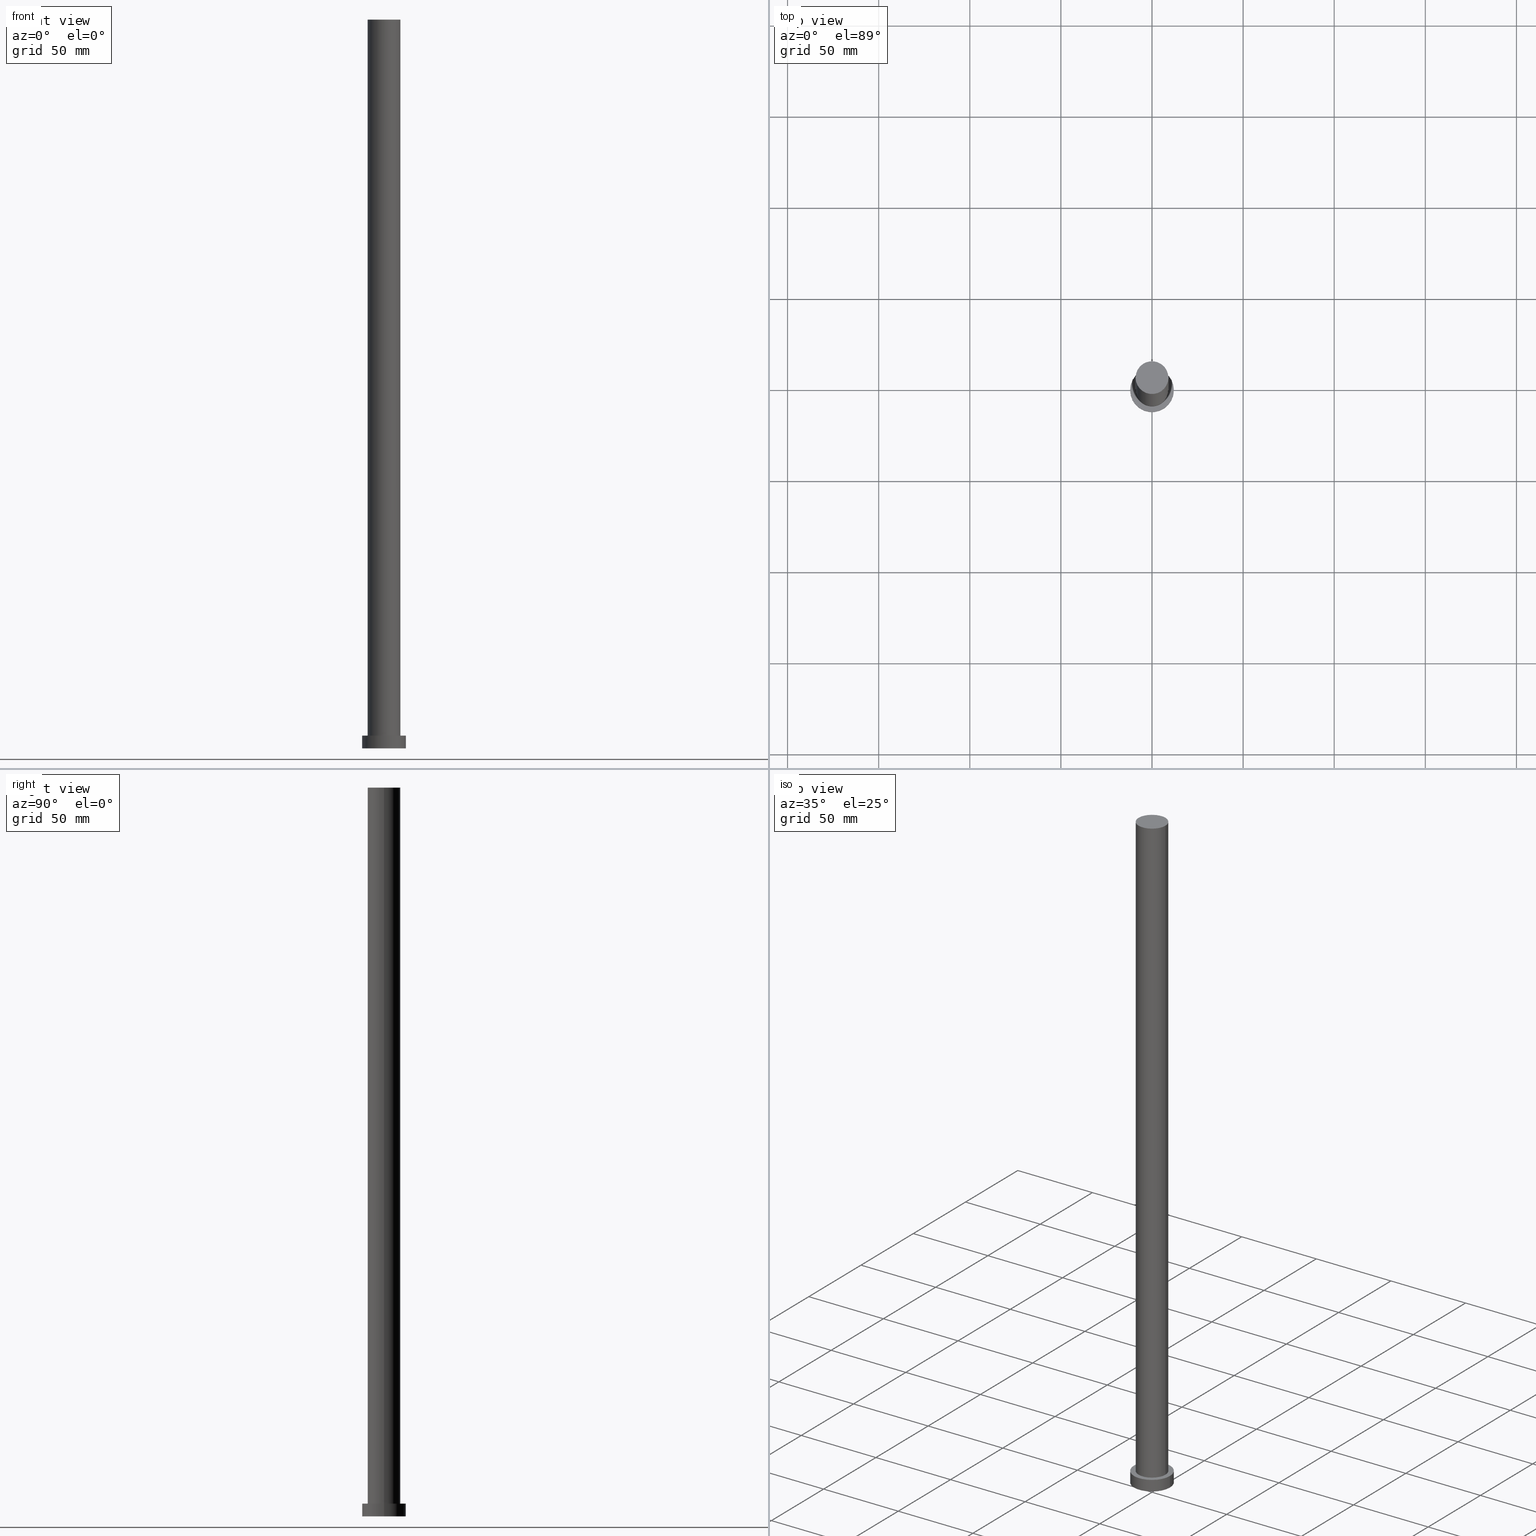
[diagram: canonical four-view strip — front | top / right | iso, engineering-drawing reading convention]
A machine part, canonical four-view strip (front | top / right | iso — engineering-drawing reading convention). The complete STEP part file that produces these views, byte-faithful:
ISO-10303-21;
HEADER;
FILE_DESCRIPTION (( 'STEP AP203' ),
    '1' );
FILE_NAME ('4e25.STEP',
    '2023-02-12T10:37:21',
    ( '' ),
    ( '' ),
    'SwSTEP 2.0',
    'SolidWorks 2019',
    '' );
FILE_SCHEMA (( 'CONFIG_CONTROL_DESIGN' ));
ENDSEC;

DATA;
#1 = ADVANCED_BREP_SHAPE_REPRESENTATION ( '4e25', ( #253, #132 ), #201 ) ;
#2 = DIRECTION ( 'NONE',  ( 1.000000000000000000, 0.000000000000000000, 0.000000000000000000 ) ) ;
#3 = COORDINATED_UNIVERSAL_TIME_OFFSET ( 1, 0, .AHEAD. ) ;
#4 = EDGE_CURVE ( 'NONE', #170, #69, #159, .T. ) ;
#5 = LINE ( 'NONE', #236, #163 ) ;
#6 = APPROVAL ( #237, 'NEUR�EN�' ) ;
#7 = CIRCLE ( 'NONE', #183, 12.00000000000000178 ) ;
#8 = DATE_AND_TIME ( #184, #244 ) ;
#9 = PERSON_AND_ORGANIZATION ( #234, #99 ) ;
#10 = CALENDAR_DATE ( 2023, 12, 2 ) ;
#11 = DIRECTION ( 'NONE',  ( 0.000000000000000000, 0.000000000000000000, 1.000000000000000000 ) ) ;
#12 = CARTESIAN_POINT ( 'NONE',  ( 0.000000000000000000, 0.000000000000000000, 7.000000000000000000 ) ) ;
#13 = CARTESIAN_POINT ( 'NONE',  ( 0.000000000000000000, 0.000000000000000000, 0.000000000000000000 ) ) ;
#14 = CIRCLE ( 'NONE', #113, 9.000000000000001776 ) ;
#15 = ORIENTED_EDGE ( 'NONE', *, *, #197, .T. ) ;
#16 = DIRECTION ( 'NONE',  ( -1.000000000000000000, 0.000000000000000000, 0.000000000000000000 ) ) ;
#17 = DIRECTION ( 'NONE',  ( -1.000000000000000000, 0.000000000000000000, 0.000000000000000000 ) ) ;
#18 = CARTESIAN_POINT ( 'NONE',  ( -12.00000000000000178, 0.000000000000000000, 7.000000000000000000 ) ) ;
#19 = FACE_OUTER_BOUND ( 'NONE', #111, .T. ) ;
#20 = SHAPE_DEFINITION_REPRESENTATION ( #175, #1 ) ;
#21 = ADVANCED_FACE ( 'NONE', ( #116 ), #149, .T. ) ;
#22 = DATE_AND_TIME ( #76, #167 ) ;
#23 = PRODUCT_RELATED_PRODUCT_CATEGORY ( 'detail', '', ( #95 ) ) ;
#24 = CARTESIAN_POINT ( 'NONE',  ( 0.000000000000000000, 0.000000000000000000, 0.000000000000000000 ) ) ;
#25 = AXIS2_PLACEMENT_3D ( 'NONE', #218, #97, #38 ) ;
#26 = LOCAL_TIME ( 11, 37, 21.00000000000000000, #240 ) ;
#27 = AXIS2_PLACEMENT_3D ( 'NONE', #118, #233, #157 ) ;
#28 = CARTESIAN_POINT ( 'NONE',  ( 0.000000000000000000, 0.000000000000000000, 400.0000000000000000 ) ) ;
#29 = PERSON_AND_ORGANIZATION ( #234, #99 ) ;
#30 = EDGE_CURVE ( 'NONE', #205, #223, #145, .T. ) ;
#31 = ORIENTED_EDGE ( 'NONE', *, *, #204, .T. ) ;
#32 = CC_DESIGN_PERSON_AND_ORGANIZATION_ASSIGNMENT ( #150, #50, ( #53 ) ) ;
#33 = PERSON_AND_ORGANIZATION_ROLE ( 'creator' ) ;
#34 = ORIENTED_EDGE ( 'NONE', *, *, #110, .T. ) ;
#35 = ORIENTED_EDGE ( 'NONE', *, *, #195, .F. ) ;
#36 = SECURITY_CLASSIFICATION ( '', '', #148 ) ;
#37 = CARTESIAN_POINT ( 'NONE',  ( 0.000000000000000000, 0.000000000000000000, 7.000000000000000000 ) ) ;
#38 = DIRECTION ( 'NONE',  ( 1.000000000000000000, 0.000000000000000000, 0.000000000000000000 ) ) ;
#39 = LINE ( 'NONE', #215, #51 ) ;
#40 = CARTESIAN_POINT ( 'NONE',  ( 0.000000000000000000, 0.000000000000000000, 7.000000000000000000 ) ) ;
#41 = CC_DESIGN_PERSON_AND_ORGANIZATION_ASSIGNMENT ( #9, #101, ( #95 ) ) ;
#42 = DIRECTION ( 'NONE',  ( 1.000000000000000000, 0.000000000000000000, 0.000000000000000000 ) ) ;
#43 = AXIS2_PLACEMENT_3D ( 'NONE', #37, #94, #178 ) ;
#44 = PERSON_AND_ORGANIZATION ( #234, #99 ) ;
#45 = CARTESIAN_POINT ( 'NONE',  ( 9.000000000000001776, 1.102182119232617911E-15, 7.000000000000000000 ) ) ;
#46 = DIRECTION ( 'NONE',  ( -0.000000000000000000, -0.000000000000000000, -1.000000000000000000 ) ) ;
#47 = APPROVAL ( #120, 'NEUR�EN�' ) ;
#48 = APPROVAL_PERSON_ORGANIZATION ( #107, #6, #134 ) ;
#49 = EDGE_LOOP ( 'NONE', ( #224, #91 ) ) ;
#50 = PERSON_AND_ORGANIZATION_ROLE ( 'design_supplier' ) ;
#51 = VECTOR ( 'NONE', #255, 1000.000000000000000 ) ;
#52 = EDGE_LOOP ( 'NONE', ( #251, #245, #88, #109 ) ) ;
#53 = PRODUCT_DEFINITION_FORMATION_WITH_SPECIFIED_SOURCE ( 'LIBOVOLN�', '', #95, .NOT_KNOWN. ) ;
#54 = DATE_TIME_ROLE ( 'classification_date' ) ;
#55 = FACE_OUTER_BOUND ( 'NONE', #126, .T. ) ;
#56 = CLOSED_SHELL ( 'NONE', ( #228, #21, #141, #90, #62, #165, #83 ) ) ;
#57 = PERSON_AND_ORGANIZATION_ROLE ( 'classification_officer' ) ;
#58 = CARTESIAN_POINT ( 'NONE',  ( 0.000000000000000000, 0.000000000000000000, 400.0000000000000000 ) ) ;
#59 = PLANE ( 'NONE',  #160 ) ;
#60 = DESIGN_CONTEXT ( 'detailed design', #87, 'design' ) ;
#61 = CARTESIAN_POINT ( 'NONE',  ( 12.00000000000000178, 1.469576158976824144E-15, 7.000000000000000000 ) ) ;
#62 = ADVANCED_FACE ( 'NONE', ( #192 ), #92, .F. ) ;
#63 = APPROVAL_ROLE ( '' ) ;
#64 = APPROVAL_DATE_TIME ( #8, #185 ) ;
#65 = EDGE_CURVE ( 'NONE', #205, #170, #5, .T. ) ;
#66 = CC_DESIGN_PERSON_AND_ORGANIZATION_ASSIGNMENT ( #44, #122, ( #158 ) ) ;
#67 = APPLICATION_CONTEXT ( 'configuration controlled 3d designs of mechanical parts and assemblies' ) ;
#68 = LOCAL_TIME ( 11, 37, 21.00000000000000000, #85 ) ;
#69 = VERTEX_POINT ( 'NONE', #194 ) ;
#70 = CARTESIAN_POINT ( 'NONE',  ( -9.000000000000001776, 0.000000000000000000, 400.0000000000000000 ) ) ;
#71 = ORIENTED_EDGE ( 'NONE', *, *, #102, .T. ) ;
#72 = DIRECTION ( 'NONE',  ( 0.000000000000000000, 0.000000000000000000, 1.000000000000000000 ) ) ;
#73 = EDGE_CURVE ( 'NONE', #209, #246, #75, .T. ) ;
#74 = DIRECTION ( 'NONE',  ( -0.000000000000000000, -0.000000000000000000, -1.000000000000000000 ) ) ;
#75 = LINE ( 'NONE', #61, #103 ) ;
#76 = CALENDAR_DATE ( 2023, 12, 2 ) ;
#77 = DIRECTION ( 'NONE',  ( 0.000000000000000000, 0.000000000000000000, 1.000000000000000000 ) ) ;
#78 = CC_DESIGN_APPROVAL ( #47, ( #53 ) ) ;
#79 = PERSON_AND_ORGANIZATION ( #234, #99 ) ;
#80 = AXIS2_PLACEMENT_3D ( 'NONE', #144, #46, #220 ) ;
#81 = CC_DESIGN_APPROVAL ( #185, ( #158 ) ) ;
#82 = EDGE_CURVE ( 'NONE', #108, #247, #39, .T. ) ;
#83 = ADVANCED_FACE ( 'NONE', ( #55 ), #119, .T. ) ;
#84 = ORIENTED_EDGE ( 'NONE', *, *, #204, .F. ) ;
#85 = COORDINATED_UNIVERSAL_TIME_OFFSET ( 1, 0, .AHEAD. ) ;
#86 = ORIENTED_EDGE ( 'NONE', *, *, #197, .F. ) ;
#87 = APPLICATION_CONTEXT ( 'configuration controlled 3d designs of mechanical parts and assemblies' ) ;
#88 = ORIENTED_EDGE ( 'NONE', *, *, #248, .T. ) ;
#89 = CC_DESIGN_APPROVAL ( #6, ( #36 ) ) ;
#90 = ADVANCED_FACE ( 'NONE', ( #235, #130 ), #59, .T. ) ;
#91 = ORIENTED_EDGE ( 'NONE', *, *, #4, .F. ) ;
#92 = PLANE ( 'NONE',  #166 ) ;
#93 = CARTESIAN_POINT ( 'NONE',  ( -9.000000000000001776, 0.000000000000000000, 400.0000000000000000 ) ) ;
#94 = DIRECTION ( 'NONE',  ( 0.000000000000000000, 0.000000000000000000, 1.000000000000000000 ) ) ;
#95 = PRODUCT ( '4e25', '4e25', '', ( #142 ) ) ;
#96 = COORDINATED_UNIVERSAL_TIME_OFFSET ( 1, 0, .AHEAD. ) ;
#97 = DIRECTION ( 'NONE',  ( 0.000000000000000000, 0.000000000000000000, 1.000000000000000000 ) ) ;
#98 = CALENDAR_DATE ( 2023, 12, 2 ) ;
#99 = ORGANIZATION ( 'NEUR�EN�', 'NEUR�EN�', '' ) ;
#100 = DIRECTION ( 'NONE',  ( 1.000000000000000000, 0.000000000000000000, 0.000000000000000000 ) ) ;
#101 = PERSON_AND_ORGANIZATION_ROLE ( 'design_owner' ) ;
#102 = EDGE_CURVE ( 'NONE', #209, #108, #139, .T. ) ;
#103 = VECTOR ( 'NONE', #254, 1000.000000000000000 ) ;
#104 = AXIS2_PLACEMENT_3D ( 'NONE', #114, #191, #16 ) ;
#105 = FACE_OUTER_BOUND ( 'NONE', #208, .T. ) ;
#106 = ORIENTED_EDGE ( 'NONE', *, *, #248, .F. ) ;
#107 = PERSON_AND_ORGANIZATION ( #234, #99 ) ;
#108 = VERTEX_POINT ( 'NONE', #18 ) ;
#109 = ORIENTED_EDGE ( 'NONE', *, *, #82, .F. ) ;
#110 = EDGE_CURVE ( 'NONE', #108, #209, #193, .T. ) ;
#111 = EDGE_LOOP ( 'NONE', ( #210, #128, #147, #15 ) ) ;
#112 = APPROVAL_DATE_TIME ( #22, #47 ) ;
#113 = AXIS2_PLACEMENT_3D ( 'NONE', #230, #156, #238 ) ;
#114 = CARTESIAN_POINT ( 'NONE',  ( 0.000000000000000000, 0.000000000000000000, 7.000000000000000000 ) ) ;
#115 = FACE_OUTER_BOUND ( 'NONE', #173, .T. ) ;
#116 = FACE_OUTER_BOUND ( 'NONE', #52, .T. ) ;
#117 = CARTESIAN_POINT ( 'NONE',  ( 0.000000000000000000, 0.000000000000000000, 7.000000000000000000 ) ) ;
#118 = CARTESIAN_POINT ( 'NONE',  ( 0.000000000000000000, 0.000000000000000000, 0.000000000000000000 ) ) ;
#119 = PLANE ( 'NONE',  #188 ) ;
#120 = APPROVAL_STATUS ( 'not_yet_approved' ) ;
#121 = CC_DESIGN_DATE_AND_TIME_ASSIGNMENT ( #177, #54, ( #36 ) ) ;
#122 = PERSON_AND_ORGANIZATION_ROLE ( 'creator' ) ;
#123 = CC_DESIGN_PERSON_AND_ORGANIZATION_ASSIGNMENT ( #29, #33, ( #53 ) ) ;
#124 = PERSON_AND_ORGANIZATION ( #234, #99 ) ;
#125 = ORIENTED_EDGE ( 'NONE', *, *, #4, .T. ) ;
#126 = EDGE_LOOP ( 'NONE', ( #249, #127 ) ) ;
#127 = ORIENTED_EDGE ( 'NONE', *, *, #30, .T. ) ;
#128 = ORIENTED_EDGE ( 'NONE', *, *, #110, .F. ) ;
#129 = AXIS2_PLACEMENT_3D ( 'NONE', #138, #174, #17 ) ;
#130 = FACE_OUTER_BOUND ( 'NONE', #187, .T. ) ;
#131 = DATE_AND_TIME ( #98, #219 ) ;
#132 = AXIS2_PLACEMENT_3D ( 'NONE', #143, #202, #100 ) ;
#133 = DIRECTION ( 'NONE',  ( 0.000000000000000000, 0.000000000000000000, 1.000000000000000000 ) ) ;
#134 = APPROVAL_ROLE ( '' ) ;
#135 = CARTESIAN_POINT ( 'NONE',  ( 0.000000000000000000, 0.000000000000000000, 400.0000000000000000 ) ) ;
#136 = DIRECTION ( 'NONE',  ( 1.000000000000000000, 0.000000000000000000, -0.000000000000000000 ) ) ;
#137 = CARTESIAN_POINT ( 'NONE',  ( 12.00000000000000178, 1.469576158976824144E-15, 7.000000000000000000 ) ) ;
#138 = CARTESIAN_POINT ( 'NONE',  ( 0.000000000000000000, 0.000000000000000000, 7.000000000000000000 ) ) ;
#139 = CIRCLE ( 'NONE', #211, 12.00000000000000178 ) ;
#140 = AXIS2_PLACEMENT_3D ( 'NONE', #28, #77, #42 ) ;
#141 = ADVANCED_FACE ( 'NONE', ( #19 ), #181, .T. ) ;
#142 = MECHANICAL_CONTEXT ( 'NONE', #67, 'mechanical' ) ;
#143 = CARTESIAN_POINT ( 'NONE',  ( 0.000000000000000000, 0.000000000000000000, 0.000000000000000000 ) ) ;
#144 = CARTESIAN_POINT ( 'NONE',  ( 0.000000000000000000, 0.000000000000000000, 400.0000000000000000 ) ) ;
#145 = CIRCLE ( 'NONE', #25, 9.000000000000001776 ) ;
#146 = APPROVAL_PERSON_ORGANIZATION ( #79, #185, #63 ) ;
#147 = ORIENTED_EDGE ( 'NONE', *, *, #82, .T. ) ;
#148 = SECURITY_CLASSIFICATION_LEVEL ( 'unclassified' ) ;
#149 = CYLINDRICAL_SURFACE ( 'NONE', #129, 12.00000000000000178 ) ;
#150 = PERSON_AND_ORGANIZATION ( #234, #99 ) ;
#151 =( LENGTH_UNIT ( ) NAMED_UNIT ( * ) SI_UNIT ( .MILLI., .METRE. ) );
#152 = DIRECTION ( 'NONE',  ( 0.000000000000000000, 0.000000000000000000, 1.000000000000000000 ) ) ;
#153 = APPROVAL_PERSON_ORGANIZATION ( #124, #47, #203 ) ;
#154 = DIRECTION ( 'NONE',  ( 1.000000000000000000, 0.000000000000000000, -0.000000000000000000 ) ) ;
#155 = COORDINATED_UNIVERSAL_TIME_OFFSET ( 1, 0, .AHEAD. ) ;
#156 = DIRECTION ( 'NONE',  ( 0.000000000000000000, 0.000000000000000000, 1.000000000000000000 ) ) ;
#157 = DIRECTION ( 'NONE',  ( 1.000000000000000000, 0.000000000000000000, 0.000000000000000000 ) ) ;
#158 = PRODUCT_DEFINITION ( 'NEZN�M�', '', #53, #60 ) ;
#159 = CIRCLE ( 'NONE', #243, 9.000000000000001776 ) ;
#160 = AXIS2_PLACEMENT_3D ( 'NONE', #40, #199, #136 ) ;
#161 = AXIS2_PLACEMENT_3D ( 'NONE', #135, #74, #217 ) ;
#162 = APPROVAL_STATUS ( 'not_yet_approved' ) ;
#163 = VECTOR ( 'NONE', #231, 1000.000000000000000 ) ;
#164 = DATE_AND_TIME ( #10, #26 ) ;
#165 = ADVANCED_FACE ( 'NONE', ( #105 ), #221, .T. ) ;
#166 = AXIS2_PLACEMENT_3D ( 'NONE', #24, #152, #176 ) ;
#167 = LOCAL_TIME ( 11, 37, 21.00000000000000000, #3 ) ;
#168 = ORIENTED_EDGE ( 'NONE', *, *, #65, .F. ) ;
#169 = CC_DESIGN_PERSON_AND_ORGANIZATION_ASSIGNMENT ( #225, #57, ( #36 ) ) ;
#170 = VERTEX_POINT ( 'NONE', #45 ) ;
#171 = VECTOR ( 'NONE', #172, 1000.000000000000000 ) ;
#172 = DIRECTION ( 'NONE',  ( -0.000000000000000000, -0.000000000000000000, -1.000000000000000000 ) ) ;
#173 = EDGE_LOOP ( 'NONE', ( #229, #226, #125, #84 ) ) ;
#174 = DIRECTION ( 'NONE',  ( -0.000000000000000000, -0.000000000000000000, -1.000000000000000000 ) ) ;
#175 = PRODUCT_DEFINITION_SHAPE ( 'NONE', 'NONE',  #158 ) ;
#176 = DIRECTION ( 'NONE',  ( 1.000000000000000000, 0.000000000000000000, -0.000000000000000000 ) ) ;
#177 = DATE_AND_TIME ( #207, #68 ) ;
#178 = DIRECTION ( 'NONE',  ( 1.000000000000000000, 0.000000000000000000, 0.000000000000000000 ) ) ;
#179 = CC_DESIGN_DATE_AND_TIME_ASSIGNMENT ( #164, #242, ( #158 ) ) ;
#180 = CARTESIAN_POINT ( 'NONE',  ( -12.00000000000000178, 0.000000000000000000, 0.000000000000000000 ) ) ;
#181 = CYLINDRICAL_SURFACE ( 'NONE', #104, 12.00000000000000178 ) ;
#182 = APPLICATION_PROTOCOL_DEFINITION ( 'international standard', 'config_control_design', 1994, #87 ) ;
#183 = AXIS2_PLACEMENT_3D ( 'NONE', #13, #133, #2 ) ;
#184 = CALENDAR_DATE ( 2023, 12, 2 ) ;
#185 = APPROVAL ( #162, 'NEUR�EN�' ) ;
#186 = ORIENTED_EDGE ( 'NONE', *, *, #241, .T. ) ;
#187 = EDGE_LOOP ( 'NONE', ( #34, #71 ) ) ;
#188 = AXIS2_PLACEMENT_3D ( 'NONE', #58, #72, #154 ) ;
#189 = CARTESIAN_POINT ( 'NONE',  ( 12.00000000000000178, 1.469576158976824144E-15, 0.000000000000000000 ) ) ;
#190 = LINE ( 'NONE', #93, #171 ) ;
#191 = DIRECTION ( 'NONE',  ( -0.000000000000000000, -0.000000000000000000, -1.000000000000000000 ) ) ;
#192 = FACE_OUTER_BOUND ( 'NONE', #206, .T. ) ;
#193 = CIRCLE ( 'NONE', #43, 12.00000000000000178 ) ;
#194 = CARTESIAN_POINT ( 'NONE',  ( -9.000000000000001776, 0.000000000000000000, 7.000000000000000000 ) ) ;
#195 = EDGE_CURVE ( 'NONE', #223, #205, #196, .T. ) ;
#196 = CIRCLE ( 'NONE', #140, 9.000000000000001776 ) ;
#197 = EDGE_CURVE ( 'NONE', #247, #246, #227, .T. ) ;
#198 = CARTESIAN_POINT ( 'NONE',  ( 9.000000000000001776, 1.102182119232617911E-15, 400.0000000000000000 ) ) ;
#199 = DIRECTION ( 'NONE',  ( 0.000000000000000000, 0.000000000000000000, 1.000000000000000000 ) ) ;
#200 = DIRECTION ( 'NONE',  ( 1.000000000000000000, 0.000000000000000000, 0.000000000000000000 ) ) ;
#201 =( GEOMETRIC_REPRESENTATION_CONTEXT ( 3 ) GLOBAL_UNCERTAINTY_ASSIGNED_CONTEXT ( ( #216 ) ) GLOBAL_UNIT_ASSIGNED_CONTEXT ( ( #151, #232, #250 ) ) REPRESENTATION_CONTEXT ( 'NONE', 'WORKASPACE' ) );
#202 = DIRECTION ( 'NONE',  ( 0.000000000000000000, 0.000000000000000000, 1.000000000000000000 ) ) ;
#203 = APPROVAL_ROLE ( '' ) ;
#204 = EDGE_CURVE ( 'NONE', #223, #69, #190, .T. ) ;
#205 = VERTEX_POINT ( 'NONE', #198 ) ;
#206 = EDGE_LOOP ( 'NONE', ( #86, #106 ) ) ;
#207 = CALENDAR_DATE ( 2023, 12, 2 ) ;
#208 = EDGE_LOOP ( 'NONE', ( #168, #35, #31, #186 ) ) ;
#209 = VERTEX_POINT ( 'NONE', #137 ) ;
#210 = ORIENTED_EDGE ( 'NONE', *, *, #73, .F. ) ;
#211 = AXIS2_PLACEMENT_3D ( 'NONE', #117, #212, #239 ) ;
#212 = DIRECTION ( 'NONE',  ( 0.000000000000000000, 0.000000000000000000, 1.000000000000000000 ) ) ;
#213 = APPROVAL_DATE_TIME ( #131, #6 ) ;
#214 = CYLINDRICAL_SURFACE ( 'NONE', #161, 9.000000000000001776 ) ;
#215 = CARTESIAN_POINT ( 'NONE',  ( -12.00000000000000178, 0.000000000000000000, 7.000000000000000000 ) ) ;
#216 = UNCERTAINTY_MEASURE_WITH_UNIT (LENGTH_MEASURE( 1.000000000000000082E-05 ), #151, 'distance_accuracy_value', 'NONE');
#217 = DIRECTION ( 'NONE',  ( -1.000000000000000000, 0.000000000000000000, 0.000000000000000000 ) ) ;
#218 = CARTESIAN_POINT ( 'NONE',  ( 0.000000000000000000, 0.000000000000000000, 400.0000000000000000 ) ) ;
#219 = LOCAL_TIME ( 11, 37, 21.00000000000000000, #155 ) ;
#220 = DIRECTION ( 'NONE',  ( -1.000000000000000000, 0.000000000000000000, 0.000000000000000000 ) ) ;
#221 = CYLINDRICAL_SURFACE ( 'NONE', #80, 9.000000000000001776 ) ;
#222 = CC_DESIGN_SECURITY_CLASSIFICATION ( #36, ( #53 ) ) ;
#223 = VERTEX_POINT ( 'NONE', #70 ) ;
#224 = ORIENTED_EDGE ( 'NONE', *, *, #241, .F. ) ;
#225 = PERSON_AND_ORGANIZATION ( #234, #99 ) ;
#226 = ORIENTED_EDGE ( 'NONE', *, *, #65, .T. ) ;
#227 = CIRCLE ( 'NONE', #27, 12.00000000000000178 ) ;
#228 = ADVANCED_FACE ( 'NONE', ( #115 ), #214, .T. ) ;
#229 = ORIENTED_EDGE ( 'NONE', *, *, #30, .F. ) ;
#230 = CARTESIAN_POINT ( 'NONE',  ( 0.000000000000000000, 0.000000000000000000, 7.000000000000000000 ) ) ;
#231 = DIRECTION ( 'NONE',  ( -0.000000000000000000, -0.000000000000000000, -1.000000000000000000 ) ) ;
#232 =( NAMED_UNIT ( * ) PLANE_ANGLE_UNIT ( ) SI_UNIT ( $, .RADIAN. ) );
#233 = DIRECTION ( 'NONE',  ( 0.000000000000000000, 0.000000000000000000, 1.000000000000000000 ) ) ;
#234 = PERSON ( 'NEUR�EN�', 'NEUR�EN�', 'NEUR�EN�', ('NEUR�EN�'), ('NEUR�EN�'), ('NEUR�EN�') ) ;
#235 = FACE_BOUND ( 'NONE', #49, .T. ) ;
#236 = CARTESIAN_POINT ( 'NONE',  ( 9.000000000000001776, 1.102182119232617911E-15, 400.0000000000000000 ) ) ;
#237 = APPROVAL_STATUS ( 'not_yet_approved' ) ;
#238 = DIRECTION ( 'NONE',  ( 1.000000000000000000, 0.000000000000000000, 0.000000000000000000 ) ) ;
#239 = DIRECTION ( 'NONE',  ( 1.000000000000000000, 0.000000000000000000, 0.000000000000000000 ) ) ;
#240 = COORDINATED_UNIVERSAL_TIME_OFFSET ( 1, 0, .AHEAD. ) ;
#241 = EDGE_CURVE ( 'NONE', #69, #170, #14, .T. ) ;
#242 = DATE_TIME_ROLE ( 'creation_date' ) ;
#243 = AXIS2_PLACEMENT_3D ( 'NONE', #12, #11, #200 ) ;
#244 = LOCAL_TIME ( 11, 37, 21.00000000000000000, #96 ) ;
#245 = ORIENTED_EDGE ( 'NONE', *, *, #73, .T. ) ;
#246 = VERTEX_POINT ( 'NONE', #189 ) ;
#247 = VERTEX_POINT ( 'NONE', #180 ) ;
#248 = EDGE_CURVE ( 'NONE', #246, #247, #7, .T. ) ;
#249 = ORIENTED_EDGE ( 'NONE', *, *, #195, .T. ) ;
#250 =( NAMED_UNIT ( * ) SI_UNIT ( $, .STERADIAN. ) SOLID_ANGLE_UNIT ( ) );
#251 = ORIENTED_EDGE ( 'NONE', *, *, #102, .F. ) ;
#252 = APPLICATION_PROTOCOL_DEFINITION ( 'international standard', 'config_control_design', 1994, #67 ) ;
#253 = MANIFOLD_SOLID_BREP ( 'P�idat vysunut�m3', #56 ) ;
#254 = DIRECTION ( 'NONE',  ( -0.000000000000000000, -0.000000000000000000, -1.000000000000000000 ) ) ;
#255 = DIRECTION ( 'NONE',  ( -0.000000000000000000, -0.000000000000000000, -1.000000000000000000 ) ) ;
ENDSEC;
END-ISO-10303-21;
